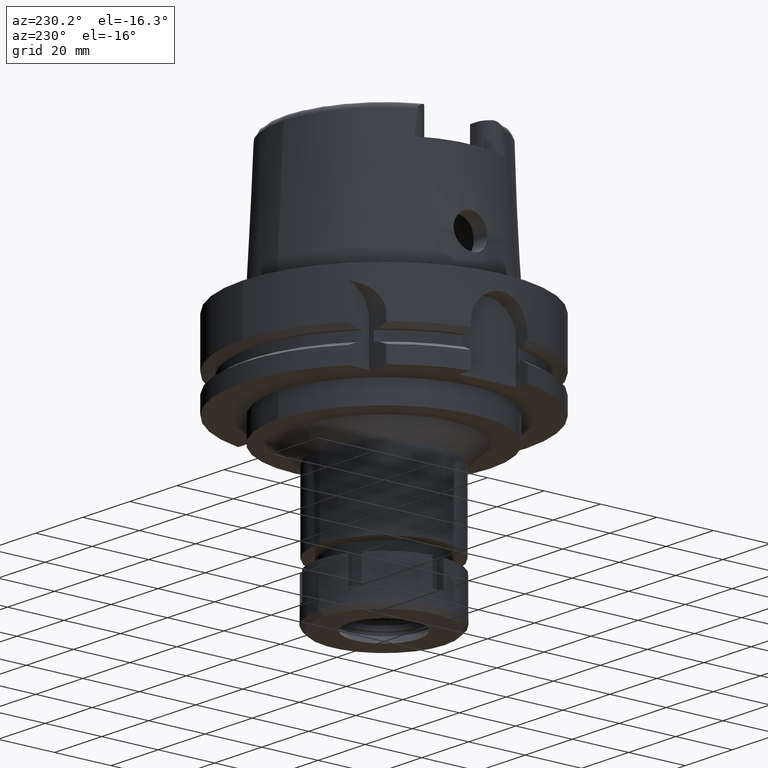
[diagram: clean part render]
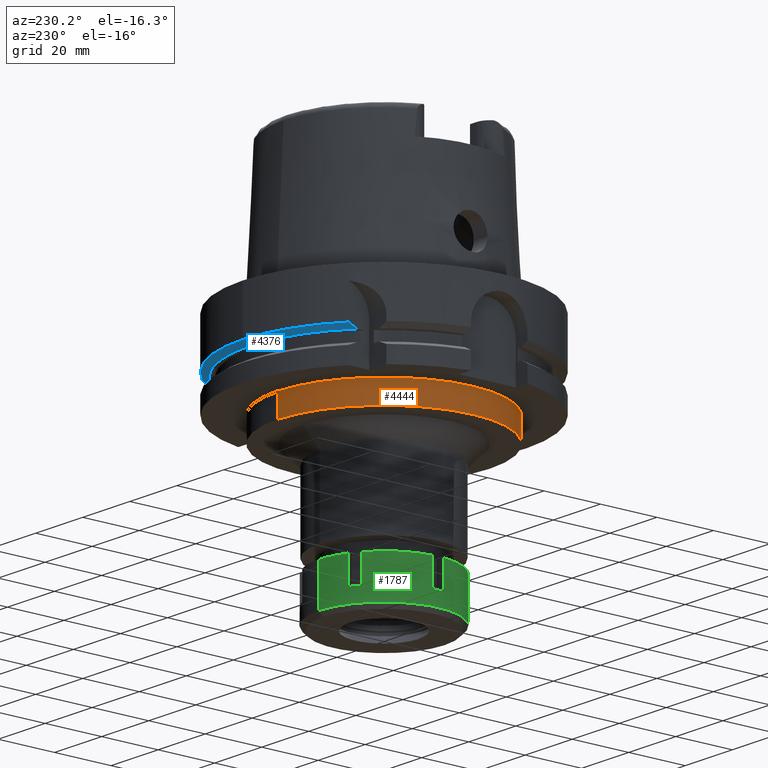
[diagram: same view with three faces highlighted in distinct colors, each labeled with its STEP entity id]
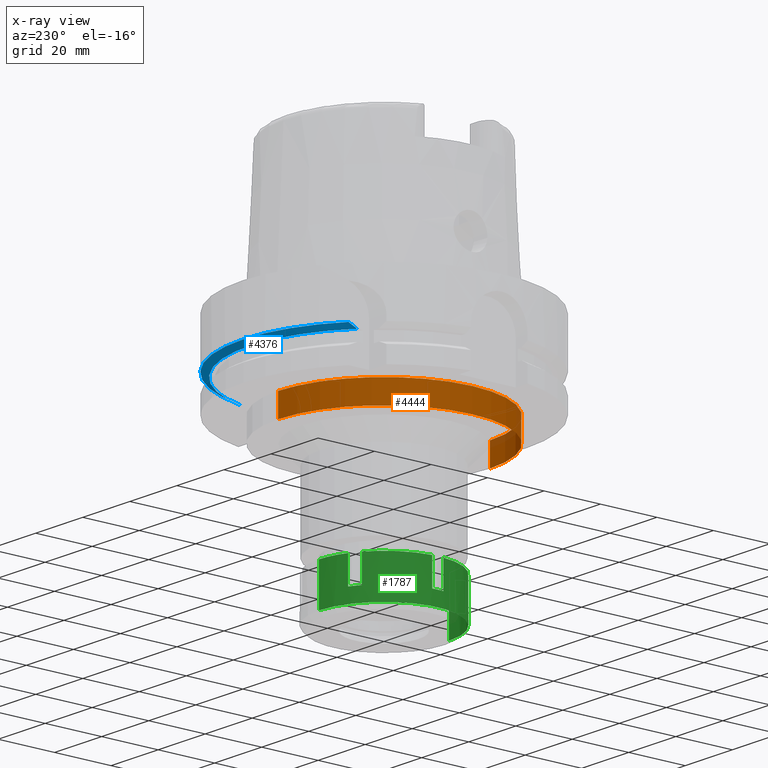
[diagram: x-ray of the same camera — body ghosted, the three highlighted faces saturated]
A machine part, auxiliary view with three faces highlighted in distinct colors.
The next image is the same camera in x-ray (body ghosted, the three faces saturated) — at least one of them is partly hidden behind the body in this view.
Their STEP definitions:

[orange] entity #4444 — the highlighted cylindrical surface (partial cylindrical patch) has radius 37.5 mm, axis along (0, 0, 1).
#9 = DIRECTION ( 'NONE',  ( 0.0000000000000000000, 0.0000000000000000000, -1.000000000000000000 ) ) ;
#353 = VERTEX_POINT ( 'NONE', #2156 ) ;
#421 = DIRECTION ( 'NONE',  ( 0.0000000000000000000, -1.000000000000000000, 0.0000000000000000000 ) ) ;
#519 = DIRECTION ( 'NONE',  ( 0.0000000000000000000, 1.000000000000000000, 0.0000000000000000000 ) ) ;
#669 = EDGE_CURVE ( 'NONE', #353, #733, #4588, .T. ) ;
#733 = VERTEX_POINT ( 'NONE', #3099 ) ;
#1200 = DIRECTION ( 'NONE',  ( 0.0000000000000000000, 0.0000000000000000000, -1.000000000000000000 ) ) ;
#1239 = ORIENTED_EDGE ( 'NONE', *, *, #2238, .T. ) ;
#1378 = CYLINDRICAL_SURFACE ( 'NONE', #4144, 37.50000000000000000 ) ;
#1438 = VERTEX_POINT ( 'NONE', #4967 ) ;
#1452 = DIRECTION ( 'NONE',  ( 0.0000000000000000000, 1.000000000000000000, 0.0000000000000000000 ) ) ;
#1503 = CARTESIAN_POINT ( 'NONE',  ( 0.0000000000000000000, -37.50000000000000000, -29.00000000000000000 ) ) ;
#1882 = ORIENTED_EDGE ( 'NONE', *, *, #3031, .F. ) ;
#2073 = VECTOR ( 'NONE', #1200, 1000.000000000000000 ) ;
#2156 = CARTESIAN_POINT ( 'NONE',  ( 0.0000000000000000000, 37.50000000000000000, -29.00000000000000000 ) ) ;
#2238 = EDGE_CURVE ( 'NONE', #5741, #353, #4010, .T. ) ;
#2244 = VECTOR ( 'NONE', #9, 1000.000000000000000 ) ;
#2625 = EDGE_CURVE ( 'NONE', #733, #1438, #5700, .T. ) ;
#2762 = CARTESIAN_POINT ( 'NONE',  ( 0.0000000000000000000, -37.50000000000000000, -29.00000000000000000 ) ) ;
#2846 = AXIS2_PLACEMENT_3D ( 'NONE', #4800, #5698, #1452 ) ;
#3031 = EDGE_CURVE ( 'NONE', #5741, #1438, #4279, .T. ) ;
#3099 = CARTESIAN_POINT ( 'NONE',  ( 0.0000000000000000000, 37.50000000000000000, -37.00000000000000000 ) ) ;
#3104 = ORIENTED_EDGE ( 'NONE', *, *, #669, .T. ) ;
#3270 = CARTESIAN_POINT ( 'NONE',  ( 0.0000000000000000000, 0.0000000000000000000, -88.59999999999999432 ) ) ;
#3746 = FACE_OUTER_BOUND ( 'NONE', #5005, .T. ) ;
#3855 = CARTESIAN_POINT ( 'NONE',  ( 0.0000000000000000000, 0.0000000000000000000, -29.00000000000000000 ) ) ;
#3916 = AXIS2_PLACEMENT_3D ( 'NONE', #3855, #4691, #421 ) ;
#4010 = CIRCLE ( 'NONE', #3916, 37.50000000000000000 ) ;
#4144 = AXIS2_PLACEMENT_3D ( 'NONE', #3270, #4846, #519 ) ;
#4279 = LINE ( 'NONE', #1503, #2244 ) ;
#4444 = ADVANCED_FACE ( 'NONE', ( #3746 ), #1378, .T. ) ;
#4588 = LINE ( 'NONE', #5546, #2073 ) ;
#4691 = DIRECTION ( 'NONE',  ( 0.0000000000000000000, 0.0000000000000000000, -1.000000000000000000 ) ) ;
#4800 = CARTESIAN_POINT ( 'NONE',  ( 0.0000000000000000000, 0.0000000000000000000, -37.00000000000000000 ) ) ;
#4846 = DIRECTION ( 'NONE',  ( 0.0000000000000000000, 0.0000000000000000000, 1.000000000000000000 ) ) ;
#4967 = CARTESIAN_POINT ( 'NONE',  ( 0.0000000000000000000, -37.50000000000000000, -37.00000000000000000 ) ) ;
#5005 = EDGE_LOOP ( 'NONE', ( #5564, #1882, #1239, #3104 ) ) ;
#5546 = CARTESIAN_POINT ( 'NONE',  ( 0.0000000000000000000, 37.50000000000000000, -29.00000000000000000 ) ) ;
#5564 = ORIENTED_EDGE ( 'NONE', *, *, #2625, .T. ) ;
#5698 = DIRECTION ( 'NONE',  ( 0.0000000000000000000, 0.0000000000000000000, 1.000000000000000000 ) ) ;
#5700 = CIRCLE ( 'NONE', #2846, 37.50000000000000000 ) ;
#5741 = VERTEX_POINT ( 'NONE', #2762 ) ;

[blue] entity #4376 — the highlighted conical surface has half-angle 60 deg.
#112 = EDGE_CURVE ( 'NONE', #5571, #3840, #1565, .T. ) ;
#138 = AXIS2_PLACEMENT_3D ( 'NONE', #6051, #2675, #5952 ) ;
#221 = CARTESIAN_POINT ( 'NONE',  ( 1.065814103639999922E-14, 50.00000000000000000, -16.75240473580999989 ) ) ;
#338 = FACE_OUTER_BOUND ( 'NONE', #4768, .T. ) ;
#439 = EDGE_CURVE ( 'NONE', #4795, #3840, #6027, .T. ) ;
#463 = B_SPLINE_CURVE_WITH_KNOTS ( 'NONE', 3,
 ( #3976, #5863, #5890, #5367, #5022, #766 ),
 .UNSPECIFIED., .F., .F.,
 ( 4, 1, 1, 4 ),
 ( 0.0000000000000000000, 0.3333333333333000081, 0.6666666666667000474, 1.000000000000000000 ),
 .UNSPECIFIED. ) ;
#766 = CARTESIAN_POINT ( 'NONE',  ( 48.77499359303000404, 11.00000000000000000, -16.75240473580999989 ) ) ;
#848 = CARTESIAN_POINT ( 'NONE',  ( 0.0000000000000000000, 0.0000000000000000000, -16.75240473580999989 ) ) ;
#880 = ORIENTED_EDGE ( 'NONE', *, *, #4672, .F. ) ;
#1018 = CARTESIAN_POINT ( 'NONE',  ( 46.33477721644000269, 11.00000000000000000, -18.12500000000000000 ) ) ;
#1565 = CIRCLE ( 'NONE', #3049, 50.00000000000000000 ) ;
#1684 = ORIENTED_EDGE ( 'NONE', *, *, #112, .F. ) ;
#1982 = EDGE_CURVE ( 'NONE', #5134, #4795, #5693, .T. ) ;
#2044 = CARTESIAN_POINT ( 'NONE',  ( -31.50000195460757979, 36.73337253298934257, -17.68464608511978042 ) ) ;
#2362 = VERTEX_POINT ( 'NONE', #2472 ) ;
#2453 = CARTESIAN_POINT ( 'NONE',  ( -31.50000097280999967, 35.71639618471999711, -18.12500000000000000 ) ) ;
#2472 = CARTESIAN_POINT ( 'NONE',  ( 48.77499359303000404, 11.00000000000000000, -16.75240473580999989 ) ) ;
#2514 = CARTESIAN_POINT ( 'NONE',  ( -31.50000711004718212, 37.77100375014965294, -17.22711240004090172 ) ) ;
#2533 = ORIENTED_EDGE ( 'NONE', *, *, #439, .T. ) ;
#2675 = DIRECTION ( 'NONE',  ( 0.0000000000000000000, 0.0000000000000000000, 1.000000000000000000 ) ) ;
#2676 = DIRECTION ( 'NONE',  ( 0.9754998718605770724, 0.2199999999999950051, 0.0000000000000000000 ) ) ;
#2760 = ORIENTED_EDGE ( 'NONE', *, *, #1982, .T. ) ;
#3027 = CARTESIAN_POINT ( 'NONE',  ( -31.50000355958999876, 38.82975374304999860, -16.75239179145000179 ) ) ;
#3049 = AXIS2_PLACEMENT_3D ( 'NONE', #848, #4647, #5471 ) ;
#3136 = CONICAL_SURFACE ( 'NONE', #5418, 48.81129763208999606, 1.047197551196400456 ) ;
#3571 = CARTESIAN_POINT ( 'NONE',  ( 0.0000000000000000000, 0.0000000000000000000, -16.75240473580999989 ) ) ;
#3573 = CARTESIAN_POINT ( 'NONE',  ( -31.50000355958999876, 38.82975374304999860, -16.75239179145000179 ) ) ;
#3676 = DIRECTION ( 'NONE',  ( 0.0000000000000000000, 1.000000000000000000, 0.0000000000000000000 ) ) ;
#3840 = VERTEX_POINT ( 'NONE', #3573 ) ;
#3925 = ORIENTED_EDGE ( 'NONE', *, *, #4642, .F. ) ;
#3976 = CARTESIAN_POINT ( 'NONE',  ( 46.33477721644000269, 11.00000000000000000, -18.12500000000000000 ) ) ;
#4149 = CARTESIAN_POINT ( 'NONE',  ( 0.0000000000000000000, 0.0000000000000000000, -17.43870236789999950 ) ) ;
#4240 = CIRCLE ( 'NONE', #4528, 50.00000000000000711 ) ;
#4376 = ADVANCED_FACE ( 'NONE', ( #338 ), #3136, .T. ) ;
#4528 = AXIS2_PLACEMENT_3D ( 'NONE', #3571, #4934, #2676 ) ;
#4591 = CARTESIAN_POINT ( 'NONE',  ( -31.50000097280999967, 35.71639618471999711, -18.12500000000000000 ) ) ;
#4642 = EDGE_CURVE ( 'NONE', #5134, #2362, #463, .T. ) ;
#4647 = DIRECTION ( 'NONE',  ( 0.0000000000000000000, 0.0000000000000000000, 1.000000000000000000 ) ) ;
#4672 = EDGE_CURVE ( 'NONE', #2362, #5571, #4240, .T. ) ;
#4768 = EDGE_LOOP ( 'NONE', ( #1684, #880, #3925, #2760, #2533 ) ) ;
#4795 = VERTEX_POINT ( 'NONE', #4591 ) ;
#4934 = DIRECTION ( 'NONE',  ( 0.0000000000000000000, 0.0000000000000000000, 1.000000000000000000 ) ) ;
#5022 = CARTESIAN_POINT ( 'NONE',  ( 48.50399904748000068, 11.00000000000000000, -16.90503024962000111 ) ) ;
#5134 = VERTEX_POINT ( 'NONE', #1018 ) ;
#5367 = CARTESIAN_POINT ( 'NONE',  ( 47.96191616323000062, 11.00000000000000000, -17.21020456769999996 ) ) ;
#5418 = AXIS2_PLACEMENT_3D ( 'NONE', #4149, #6126, #3676 ) ;
#5471 = DIRECTION ( 'NONE',  ( 0.0000000000000000000, 1.000000000000000000, 0.0000000000000000000 ) ) ;
#5571 = VERTEX_POINT ( 'NONE', #221 ) ;
#5693 = CIRCLE ( 'NONE', #138, 47.62259526418999656 ) ;
#5863 = CARTESIAN_POINT ( 'NONE',  ( 46.60605711264999940, 11.00000000000000000, -17.97261191788999923 ) ) ;
#5890 = CARTESIAN_POINT ( 'NONE',  ( 47.14851446811000102, 11.00000000000000000, -17.66774350266999960 ) ) ;
#5952 = DIRECTION ( 'NONE',  ( 0.9729578356532629924, 0.2309827916553914839, 0.0000000000000000000 ) ) ;
#6027 = B_SPLINE_CURVE_WITH_KNOTS ( 'NONE', 3,
 ( #2453, #2044, #2514, #3027 ),
 .UNSPECIFIED., .F., .F.,
 ( 4, 4 ),
 ( 0.0000000000000000000, 1.000000000000000000 ),
 .UNSPECIFIED. ) ;
#6051 = CARTESIAN_POINT ( 'NONE',  ( 0.0000000000000000000, 0.0000000000000000000, -18.12500000000000000 ) ) ;
#6126 = DIRECTION ( 'NONE',  ( 0.0000000000000000000, 0.0000000000000000000, 1.000000000000000000 ) ) ;

[green] entity #1787 — the highlighted cylindrical surface (partial cylindrical patch) has radius 23 mm, axis along (0, 0, -1).
#16 = CARTESIAN_POINT ( 'NONE',  ( 0.0000000000000000000, 0.0000000000000000000, -9.500000000000000000 ) ) ;
#119 = DIRECTION ( 'NONE',  ( 0.0000000000000000000, 0.0000000000000000000, -1.000000000000000000 ) ) ;
#148 = CARTESIAN_POINT ( 'NONE',  ( 0.0000000000000000000, 0.0000000000000000000, -14.50000000000000000 ) ) ;
#210 = ORIENTED_EDGE ( 'NONE', *, *, #5495, .T. ) ;
#227 = VECTOR ( 'NONE', #1301, 1000.000000000000000 ) ;
#451 = CARTESIAN_POINT ( 'NONE',  ( -9.724388429822001356, -20.84313483297999881, -9.500000000000000000 ) ) ;
#515 = VERTEX_POINT ( 'NONE', #5645 ) ;
#525 = CIRCLE ( 'NONE', #727, 22.99999999999999289 ) ;
#572 = DIRECTION ( 'NONE',  ( -0.9962121075990957308, -0.08695652173912968297, 0.0000000000000000000 ) ) ;
#632 = CARTESIAN_POINT ( 'NONE',  ( -9.724388429823001445, -20.84313483297999881, -9.500000000000000000 ) ) ;
#723 = CARTESIAN_POINT ( 'NONE',  ( -13.18849004495999999, 18.84313483298000236, -9.500000000000000000 ) ) ;
#727 = AXIS2_PLACEMENT_3D ( 'NONE', #4261, #3353, #4750 ) ;
#757 = CARTESIAN_POINT ( 'NONE',  ( 0.0000000000000000000, 23.00000000000000000, 0.0000000000000000000 ) ) ;
#835 = ORIENTED_EDGE ( 'NONE', *, *, #6066, .F. ) ;
#845 = ORIENTED_EDGE ( 'NONE', *, *, #4217, .F. ) ;
#870 = EDGE_CURVE ( 'NONE', #5248, #5999, #1395, .T. ) ;
#892 = ORIENTED_EDGE ( 'NONE', *, *, #2548, .T. ) ;
#899 = CARTESIAN_POINT ( 'NONE',  ( -13.18849004495999999, -18.84313483298000236, -9.500000000000000000 ) ) ;
#906 = EDGE_CURVE ( 'NONE', #5248, #3853, #1118, .T. ) ;
#1000 = VERTEX_POINT ( 'NONE', #2891 ) ;
#1059 = DIRECTION ( 'NONE',  ( 0.0000000000000000000, -1.000000000000000000, 0.0000000000000000000 ) ) ;
#1067 = ORIENTED_EDGE ( 'NONE', *, *, #2745, .F. ) ;
#1110 = CARTESIAN_POINT ( 'NONE',  ( -13.18849004495999999, 18.84313483298000236, -9.500000000000000000 ) ) ;
#1113 = CARTESIAN_POINT ( 'NONE',  ( 0.0000000000000000000, -23.00000000000000000, -14.50000000000000000 ) ) ;
#1118 = CIRCLE ( 'NONE', #3998, 23.00000000000001066 ) ;
#1171 = DIRECTION ( 'NONE',  ( 0.0000000000000000000, 0.0000000000000000000, -1.000000000000000000 ) ) ;
#1301 = DIRECTION ( 'NONE',  ( 0.0000000000000000000, 0.0000000000000000000, -1.000000000000000000 ) ) ;
#1305 = ORIENTED_EDGE ( 'NONE', *, *, #3006, .F. ) ;
#1342 = VERTEX_POINT ( 'NONE', #1475 ) ;
#1369 = CARTESIAN_POINT ( 'NONE',  ( 0.0000000000000000000, 0.0000000000000000000, -9.500000000000000000 ) ) ;
#1395 = LINE ( 'NONE', #451, #4399 ) ;
#1475 = CARTESIAN_POINT ( 'NONE',  ( -9.724388429820001178, 20.84313483297999881, 0.0000000000000000000 ) ) ;
#1477 = CARTESIAN_POINT ( 'NONE',  ( 0.0000000000000000000, 23.00000000000000000, 0.0000000000000000000 ) ) ;
#1481 = ORIENTED_EDGE ( 'NONE', *, *, #870, .F. ) ;
#1524 = DIRECTION ( 'NONE',  ( 0.0000000000000000000, 0.0000000000000000000, -1.000000000000000000 ) ) ;
#1529 = ORIENTED_EDGE ( 'NONE', *, *, #5951, .T. ) ;
#1536 = CARTESIAN_POINT ( 'NONE',  ( -9.724388429820001178, 20.84313483297999881, 0.0000000000000000000 ) ) ;
#1544 = VECTOR ( 'NONE', #1701, 1000.000000000000000 ) ;
#1632 = EDGE_CURVE ( 'NONE', #3954, #3853, #5093, .T. ) ;
#1701 = DIRECTION ( 'NONE',  ( 0.0000000000000000000, 0.0000000000000000000, 1.000000000000000000 ) ) ;
#1737 = VERTEX_POINT ( 'NONE', #2844 ) ;
#1783 = VERTEX_POINT ( 'NONE', #1113 ) ;
#1787 = ADVANCED_FACE ( 'NONE', ( #5306 ), #5772, .T. ) ;
#1802 = EDGE_CURVE ( 'NONE', #1864, #5999, #5097, .T. ) ;
#1834 = EDGE_CURVE ( 'NONE', #2153, #1783, #2731, .T. ) ;
#1840 = EDGE_CURVE ( 'NONE', #5081, #515, #3821, .T. ) ;
#1845 = DIRECTION ( 'NONE',  ( 0.0000000000000000000, 0.0000000000000000000, -1.000000000000000000 ) ) ;
#1864 = VERTEX_POINT ( 'NONE', #5366 ) ;
#1934 = AXIS2_PLACEMENT_3D ( 'NONE', #3072, #119, #3975 ) ;
#2016 = EDGE_CURVE ( 'NONE', #5081, #5166, #4138, .T. ) ;
#2129 = EDGE_CURVE ( 'NONE', #3954, #1000, #525, .T. ) ;
#2153 = VERTEX_POINT ( 'NONE', #2310 ) ;
#2184 = AXIS2_PLACEMENT_3D ( 'NONE', #2278, #1845, #2711 ) ;
#2189 = LINE ( 'NONE', #3613, #3075 ) ;
#2190 = CIRCLE ( 'NONE', #5646, 23.00000000000000355 ) ;
#2278 = CARTESIAN_POINT ( 'NONE',  ( 0.0000000000000000000, 0.0000000000000000000, 0.0000000000000000000 ) ) ;
#2308 = DIRECTION ( 'NONE',  ( 0.0000000000000000000, 0.0000000000000000000, 1.000000000000000000 ) ) ;
#2310 = CARTESIAN_POINT ( 'NONE',  ( 0.0000000000000000000, 23.00000000000000000, -14.50000000000000000 ) ) ;
#2479 = DIRECTION ( 'NONE',  ( -0.5734126106504978670, 0.8192667318687978373, 0.0000000000000000000 ) ) ;
#2493 = VECTOR ( 'NONE', #3374, 1000.000000000000000 ) ;
#2499 = DIRECTION ( 'NONE',  ( 0.0000000000000000000, 0.0000000000000000000, 1.000000000000000000 ) ) ;
#2508 = CARTESIAN_POINT ( 'NONE',  ( -9.724388429823001445, -20.84313483297999881, 0.0000000000000000000 ) ) ;
#2516 = LINE ( 'NONE', #2946, #3844 ) ;
#2545 = LINE ( 'NONE', #723, #1544 ) ;
#2548 = EDGE_CURVE ( 'NONE', #2670, #5166, #3729, .T. ) ;
#2670 = VERTEX_POINT ( 'NONE', #4346 ) ;
#2711 = DIRECTION ( 'NONE',  ( -0.4227994969487119392, 0.9062232536080258027, 0.0000000000000000000 ) ) ;
#2731 = CIRCLE ( 'NONE', #3221, 23.00000000000000000 ) ;
#2745 = EDGE_CURVE ( 'NONE', #3983, #515, #2545, .T. ) ;
#2844 = CARTESIAN_POINT ( 'NONE',  ( -9.724388429820001178, 20.84313483297999881, -9.500000000000000000 ) ) ;
#2866 = DIRECTION ( 'NONE',  ( -0.4227994969487938182, -0.9062232536079875000, 0.0000000000000000000 ) ) ;
#2881 = LINE ( 'NONE', #1536, #5209 ) ;
#2891 = CARTESIAN_POINT ( 'NONE',  ( -22.91287847478000117, -2.000000000000000000, 0.0000000000000000000 ) ) ;
#2899 = ORIENTED_EDGE ( 'NONE', *, *, #906, .T. ) ;
#2946 = CARTESIAN_POINT ( 'NONE',  ( -22.91287847478000117, -2.000000000000000000, -9.500000000000000000 ) ) ;
#2955 = CARTESIAN_POINT ( 'NONE',  ( -22.91287847478000117, 2.000000000000000000, -9.500000000000000000 ) ) ;
#3006 = EDGE_CURVE ( 'NONE', #1342, #1737, #2881, .T. ) ;
#3072 = CARTESIAN_POINT ( 'NONE',  ( 0.0000000000000000000, 0.0000000000000000000, 0.0000000000000000000 ) ) ;
#3075 = VECTOR ( 'NONE', #4572, 1000.000000000000000 ) ;
#3221 = AXIS2_PLACEMENT_3D ( 'NONE', #148, #2499, #3484 ) ;
#3353 = DIRECTION ( 'NONE',  ( 0.0000000000000000000, 0.0000000000000000000, -1.000000000000000000 ) ) ;
#3374 = DIRECTION ( 'NONE',  ( 0.0000000000000000000, 0.0000000000000000000, -1.000000000000000000 ) ) ;
#3460 = ORIENTED_EDGE ( 'NONE', *, *, #1632, .F. ) ;
#3484 = DIRECTION ( 'NONE',  ( 0.0000000000000000000, 1.000000000000000000, 0.0000000000000000000 ) ) ;
#3613 = CARTESIAN_POINT ( 'NONE',  ( 0.0000000000000000000, -23.00000000000000000, 0.0000000000000000000 ) ) ;
#3643 = CARTESIAN_POINT ( 'NONE',  ( -13.18849004495999999, -18.84313483298000236, 0.0000000000000000000 ) ) ;
#3729 = CIRCLE ( 'NONE', #4509, 23.00000000000000355 ) ;
#3776 = CIRCLE ( 'NONE', #2184, 23.00000000000000355 ) ;
#3821 = CIRCLE ( 'NONE', #1934, 23.00000000000000355 ) ;
#3844 = VECTOR ( 'NONE', #5786, 1000.000000000000000 ) ;
#3853 = VERTEX_POINT ( 'NONE', #899 ) ;
#3885 = CARTESIAN_POINT ( 'NONE',  ( -13.18849004495999999, -18.84313483298000236, 0.0000000000000000000 ) ) ;
#3909 = VECTOR ( 'NONE', #4667, 1000.000000000000000 ) ;
#3954 = VERTEX_POINT ( 'NONE', #3885 ) ;
#3975 = DIRECTION ( 'NONE',  ( -0.9962121075990957308, 0.08695652173912968297, 0.0000000000000000000 ) ) ;
#3983 = VERTEX_POINT ( 'NONE', #1110 ) ;
#3998 = AXIS2_PLACEMENT_3D ( 'NONE', #1369, #5701, #2866 ) ;
#4004 = AXIS2_PLACEMENT_3D ( 'NONE', #5801, #1171, #5397 ) ;
#4018 = DIRECTION ( 'NONE',  ( 0.0000000000000000000, 0.0000000000000000000, -1.000000000000000000 ) ) ;
#4138 = LINE ( 'NONE', #5983, #227 ) ;
#4217 = EDGE_CURVE ( 'NONE', #2670, #1000, #2516, .T. ) ;
#4261 = CARTESIAN_POINT ( 'NONE',  ( 0.0000000000000000000, 0.0000000000000000000, 0.0000000000000000000 ) ) ;
#4346 = CARTESIAN_POINT ( 'NONE',  ( -22.91287847478000117, -2.000000000000000000, -9.500000000000000000 ) ) ;
#4353 = ORIENTED_EDGE ( 'NONE', *, *, #2129, .T. ) ;
#4374 = DIRECTION ( 'NONE',  ( 0.0000000000000000000, 0.0000000000000000000, -1.000000000000000000 ) ) ;
#4385 = CARTESIAN_POINT ( 'NONE',  ( 0.0000000000000000000, 0.0000000000000000000, 0.0000000000000000000 ) ) ;
#4399 = VECTOR ( 'NONE', #2308, 1000.000000000000000 ) ;
#4417 = ORIENTED_EDGE ( 'NONE', *, *, #1834, .T. ) ;
#4509 = AXIS2_PLACEMENT_3D ( 'NONE', #16, #4374, #572 ) ;
#4538 = ORIENTED_EDGE ( 'NONE', *, *, #2016, .F. ) ;
#4552 = EDGE_LOOP ( 'NONE', ( #1305, #4932, #210, #4417, #835, #6057, #1481, #2899, #3460, #4353, #845, #892, #4538, #5403, #1067, #1529 ) ) ;
#4572 = DIRECTION ( 'NONE',  ( 0.0000000000000000000, 0.0000000000000000000, -1.000000000000000000 ) ) ;
#4667 = DIRECTION ( 'NONE',  ( 0.0000000000000000000, 0.0000000000000000000, -1.000000000000000000 ) ) ;
#4750 = DIRECTION ( 'NONE',  ( -0.5734126106503841802, -0.8192667318688773292, 0.0000000000000000000 ) ) ;
#4779 = CARTESIAN_POINT ( 'NONE',  ( -22.91287847478000117, 2.000000000000000000, 0.0000000000000000000 ) ) ;
#4850 = EDGE_CURVE ( 'NONE', #1342, #5470, #3776, .T. ) ;
#4932 = ORIENTED_EDGE ( 'NONE', *, *, #4850, .T. ) ;
#5081 = VERTEX_POINT ( 'NONE', #4779 ) ;
#5093 = LINE ( 'NONE', #3643, #3909 ) ;
#5097 = CIRCLE ( 'NONE', #4004, 23.00000000000000000 ) ;
#5166 = VERTEX_POINT ( 'NONE', #2955 ) ;
#5209 = VECTOR ( 'NONE', #6133, 1000.000000000000000 ) ;
#5248 = VERTEX_POINT ( 'NONE', #632 ) ;
#5306 = FACE_OUTER_BOUND ( 'NONE', #4552, .T. ) ;
#5366 = CARTESIAN_POINT ( 'NONE',  ( 0.0000000000000000000, -23.00000000000000000, 0.0000000000000000000 ) ) ;
#5397 = DIRECTION ( 'NONE',  ( 0.0000000000000000000, -1.000000000000000000, 0.0000000000000000000 ) ) ;
#5403 = ORIENTED_EDGE ( 'NONE', *, *, #1840, .T. ) ;
#5470 = VERTEX_POINT ( 'NONE', #757 ) ;
#5495 = EDGE_CURVE ( 'NONE', #5470, #2153, #5730, .T. ) ;
#5645 = CARTESIAN_POINT ( 'NONE',  ( -13.18849004495999999, 18.84313483298000236, 0.0000000000000000000 ) ) ;
#5646 = AXIS2_PLACEMENT_3D ( 'NONE', #5843, #4018, #2479 ) ;
#5687 = AXIS2_PLACEMENT_3D ( 'NONE', #4385, #1524, #1059 ) ;
#5701 = DIRECTION ( 'NONE',  ( 0.0000000000000000000, 0.0000000000000000000, -1.000000000000000000 ) ) ;
#5730 = LINE ( 'NONE', #1477, #2493 ) ;
#5772 = CYLINDRICAL_SURFACE ( 'NONE', #5687, 23.00000000000000000 ) ;
#5786 = DIRECTION ( 'NONE',  ( 0.0000000000000000000, 0.0000000000000000000, 1.000000000000000000 ) ) ;
#5801 = CARTESIAN_POINT ( 'NONE',  ( 0.0000000000000000000, 0.0000000000000000000, 0.0000000000000000000 ) ) ;
#5843 = CARTESIAN_POINT ( 'NONE',  ( 0.0000000000000000000, 0.0000000000000000000, -9.500000000000000000 ) ) ;
#5951 = EDGE_CURVE ( 'NONE', #3983, #1737, #2190, .T. ) ;
#5983 = CARTESIAN_POINT ( 'NONE',  ( -22.91287847478000117, 2.000000000000000000, 0.0000000000000000000 ) ) ;
#5999 = VERTEX_POINT ( 'NONE', #2508 ) ;
#6057 = ORIENTED_EDGE ( 'NONE', *, *, #1802, .T. ) ;
#6066 = EDGE_CURVE ( 'NONE', #1864, #1783, #2189, .T. ) ;
#6133 = DIRECTION ( 'NONE',  ( 0.0000000000000000000, 0.0000000000000000000, -1.000000000000000000 ) ) ;